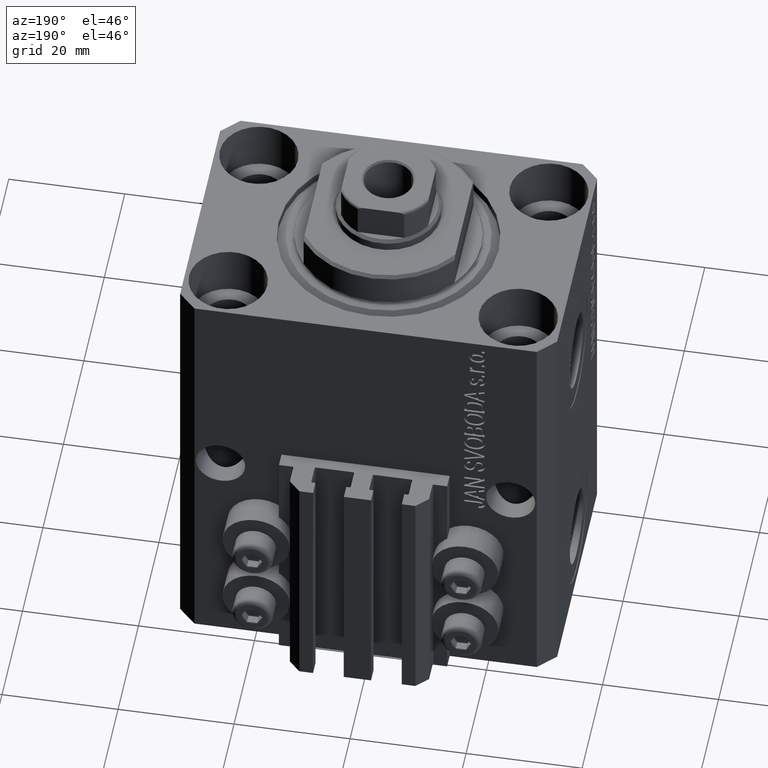
[diagram: clean part render]
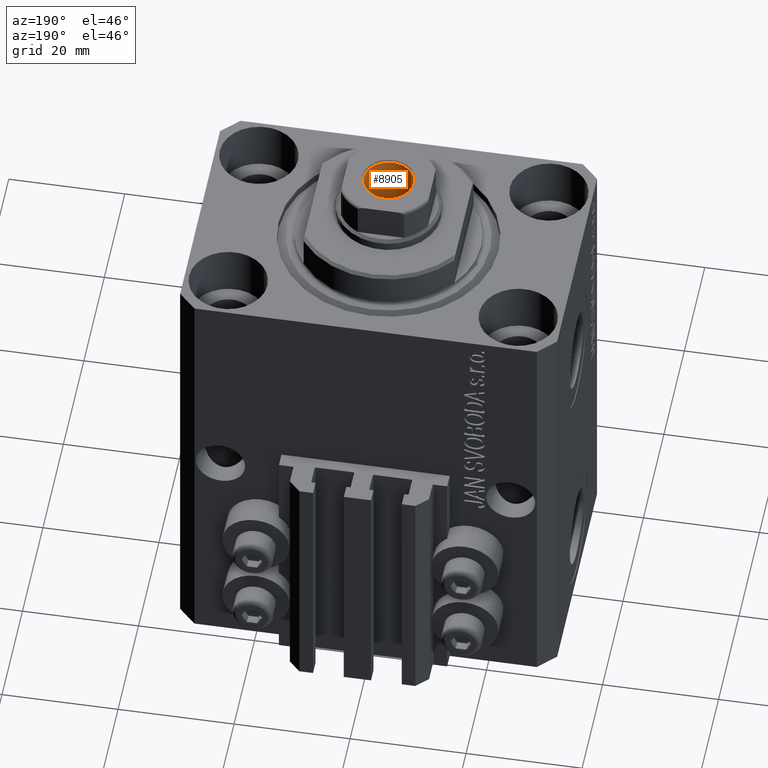
[diagram: same view with one face highlighted and labeled with its STEP entity id]
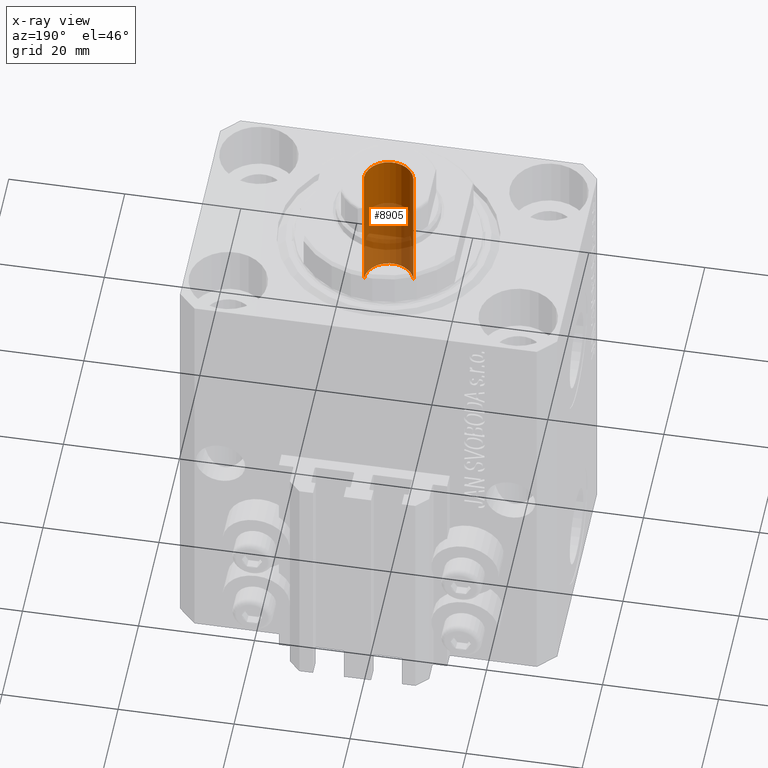
[diagram: x-ray of the same camera — body ghosted, the highlighted face saturated]
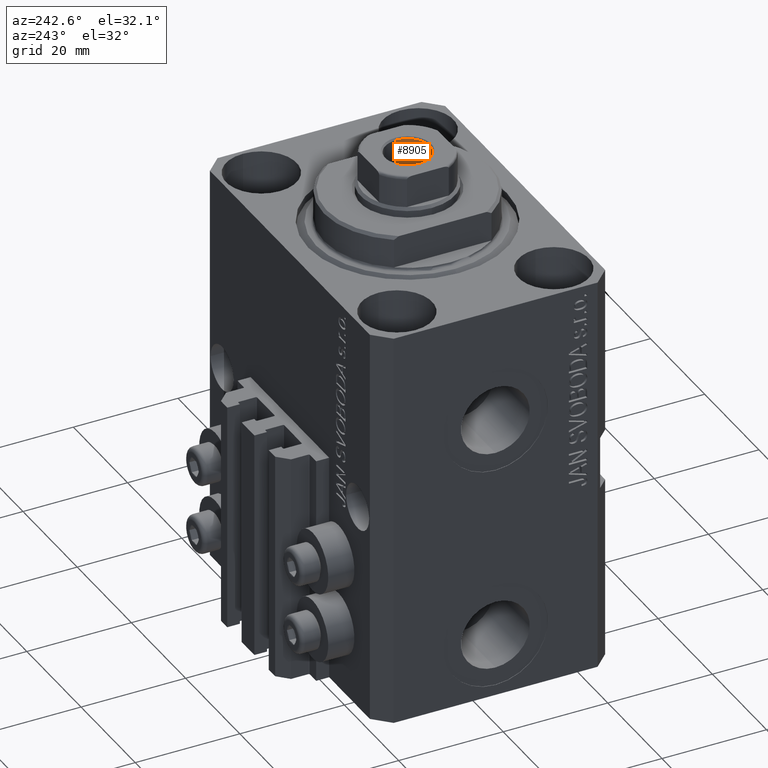
[diagram: same view with one face highlighted and labeled with its STEP entity id]
A machine part, auxiliary view. The second image highlights one B-rep face of the part: STEP entity #8905.
The next image is the same camera in x-ray: the body ghosted, the highlighted face saturated — about 55% of this face is hidden behind the body in this view.
A second angle (auxiliary view) of the same face is appended — the face is thin or edge-on in the first view.
In plain terms, the highlighted cylindrical surface (edge-blend (fillet) strip) has radius 4.25 mm, axis along (0, 0, 1).
Its self-contained STEP definition (entity closure, byte-faithful):
#909 = DIRECTION ( 'NONE',  ( -0.000000000000000000, -0.000000000000000000, 1.000000000000000000 ) ) ;
#914 = VERTEX_POINT ( 'NONE', #16942 ) ;
#3654 = VERTEX_POINT ( 'NONE', #41973 ) ;
#3875 = EDGE_CURVE ( 'NONE', #35060, #3654, #17233, .T. ) ;
#5146 = FACE_OUTER_BOUND ( 'NONE', #38261, .T. ) ;
#8905 = ADVANCED_FACE ( 'NONE', ( #5146 ), #22805, .F. ) ;
#9237 = CARTESIAN_POINT ( 'NONE',  ( 4.249999999999996447, 0.000000000000000000, 84.10000000000000853 ) ) ;
#10105 = LINE ( 'NONE', #24627, #23939 ) ;
#12815 = LINE ( 'NONE', #9237, #44652 ) ;
#15006 = DIRECTION ( 'NONE',  ( 1.000000000000000000, 0.000000000000000000, 0.000000000000000000 ) ) ;
#15488 = CIRCLE ( 'NONE', #17766, 4.249999999999996447 ) ;
#15894 = DIRECTION ( 'NONE',  ( -0.000000000000000000, -0.000000000000000000, 1.000000000000000000 ) ) ;
#16359 = DIRECTION ( 'NONE',  ( 1.000000000000000000, 0.000000000000000000, 0.000000000000000000 ) ) ;
#16942 = CARTESIAN_POINT ( 'NONE',  ( -4.249999999999996447, 5.204748896376247741E-16, 83.80000000000002558 ) ) ;
#17233 = CIRCLE ( 'NONE', #20259, 4.249999999999994671 ) ;
#17766 = AXIS2_PLACEMENT_3D ( 'NONE', #32835, #36174, #22116 ) ;
#19521 = CARTESIAN_POINT ( 'NONE',  ( 4.249999999999996447, 0.000000000000000000, 83.80000000000002558 ) ) ;
#20259 = AXIS2_PLACEMENT_3D ( 'NONE', #40495, #909, #15006 ) ;
#20625 = VERTEX_POINT ( 'NONE', #19521 ) ;
#22116 = DIRECTION ( 'NONE',  ( 1.000000000000000000, 0.000000000000000000, 0.000000000000000000 ) ) ;
#22418 = ORIENTED_EDGE ( 'NONE', *, *, #3875, .F. ) ;
#22805 = CYLINDRICAL_SURFACE ( 'NONE', #23182, 4.249999999999996447 ) ;
#23182 = AXIS2_PLACEMENT_3D ( 'NONE', #34223, #15894, #16359 ) ;
#23939 = VECTOR ( 'NONE', #39162, 1000.000000000000000 ) ;
#24627 = CARTESIAN_POINT ( 'NONE',  ( -4.249999999999996447, 5.204748896376247741E-16, 84.10000000000000853 ) ) ;
#26861 = DIRECTION ( 'NONE',  ( -0.000000000000000000, -0.000000000000000000, 1.000000000000000000 ) ) ;
#32835 = CARTESIAN_POINT ( 'NONE',  ( 0.000000000000000000, 0.000000000000000000, 83.80000000000002558 ) ) ;
#34223 = CARTESIAN_POINT ( 'NONE',  ( 0.000000000000000000, 0.000000000000000000, 84.10000000000000853 ) ) ;
#35060 = VERTEX_POINT ( 'NONE', #40047 ) ;
#36174 = DIRECTION ( 'NONE',  ( 0.000000000000000000, 0.000000000000000000, 1.000000000000000000 ) ) ;
#36842 = EDGE_CURVE ( 'NONE', #914, #20625, #15488, .T. ) ;
#38261 = EDGE_LOOP ( 'NONE', ( #22418, #41053, #40783, #46850 ) ) ;
#39162 = DIRECTION ( 'NONE',  ( -0.000000000000000000, -0.000000000000000000, 1.000000000000000000 ) ) ;
#39996 = EDGE_CURVE ( 'NONE', #35060, #914, #10105, .T. ) ;
#40047 = CARTESIAN_POINT ( 'NONE',  ( -4.249999999999994671, 5.204748896376244783E-16, 59.10000000000000853 ) ) ;
#40495 = CARTESIAN_POINT ( 'NONE',  ( 0.000000000000000000, 0.000000000000000000, 59.10000000000000853 ) ) ;
#40783 = ORIENTED_EDGE ( 'NONE', *, *, #36842, .T. ) ;
#41053 = ORIENTED_EDGE ( 'NONE', *, *, #39996, .T. ) ;
#41973 = CARTESIAN_POINT ( 'NONE',  ( 4.249999999999994671, 0.000000000000000000, 59.10000000000000853 ) ) ;
#42701 = EDGE_CURVE ( 'NONE', #3654, #20625, #12815, .T. ) ;
#44652 = VECTOR ( 'NONE', #26861, 1000.000000000000000 ) ;
#46850 = ORIENTED_EDGE ( 'NONE', *, *, #42701, .F. ) ;